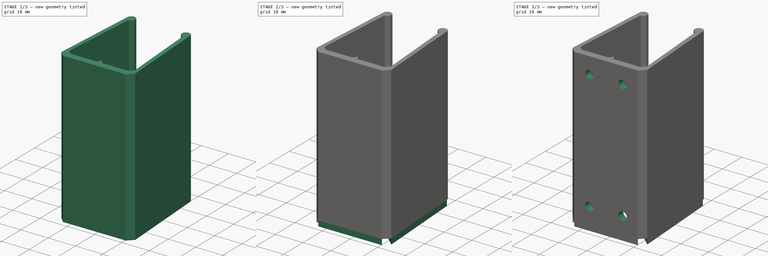
[diagram: build sequence overview — one tinted view per stage of 3, left to right]
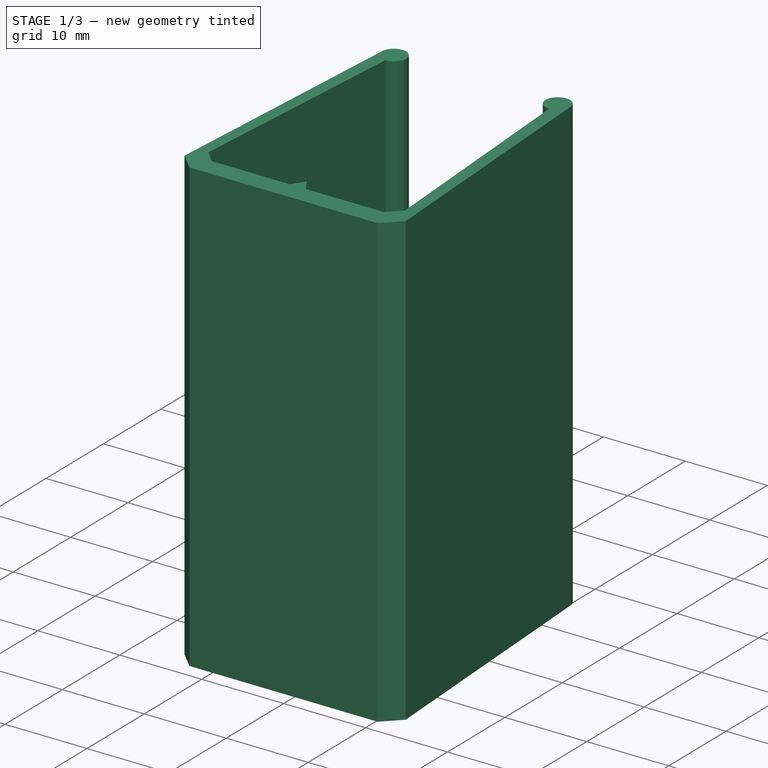
[diagram: stage 1 of 3 — iso view after this stage's code; geometry added in this stage tinted green]
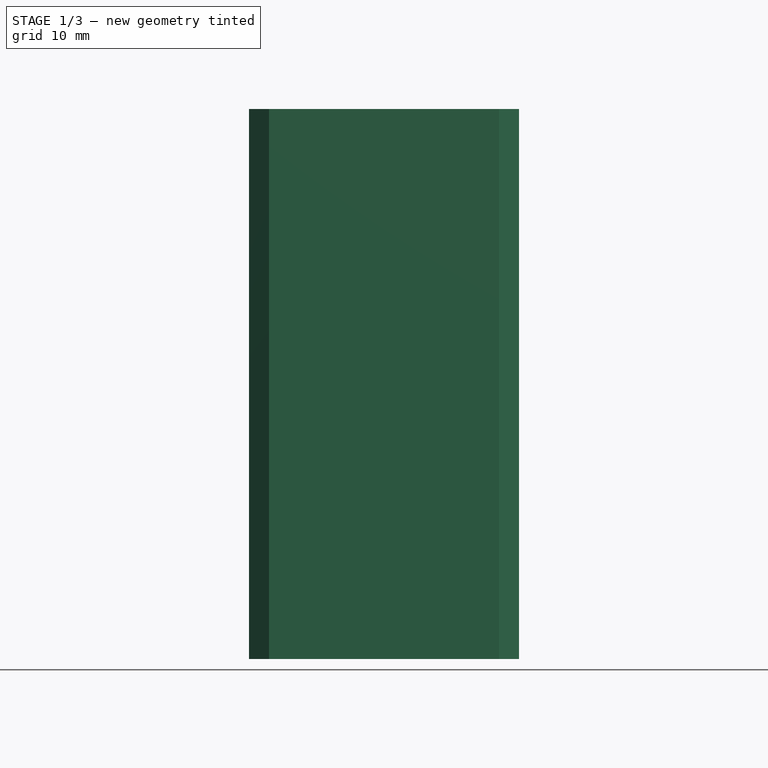
[diagram: stage 1 of 3 — front view after this stage's code; geometry added in this stage tinted green]
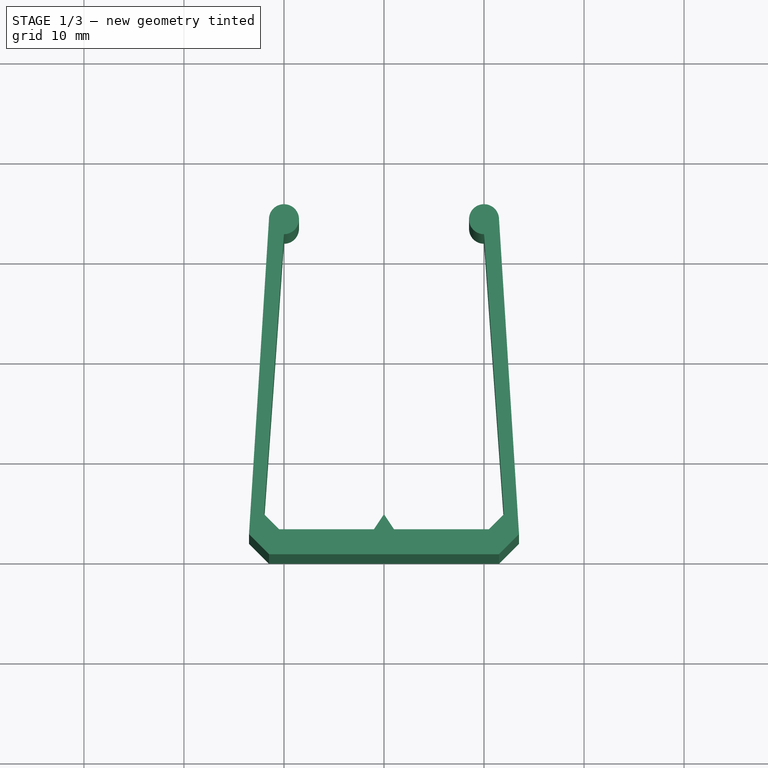
[diagram: stage 1 of 3 — top view after this stage's code; geometry added in this stage tinted green]
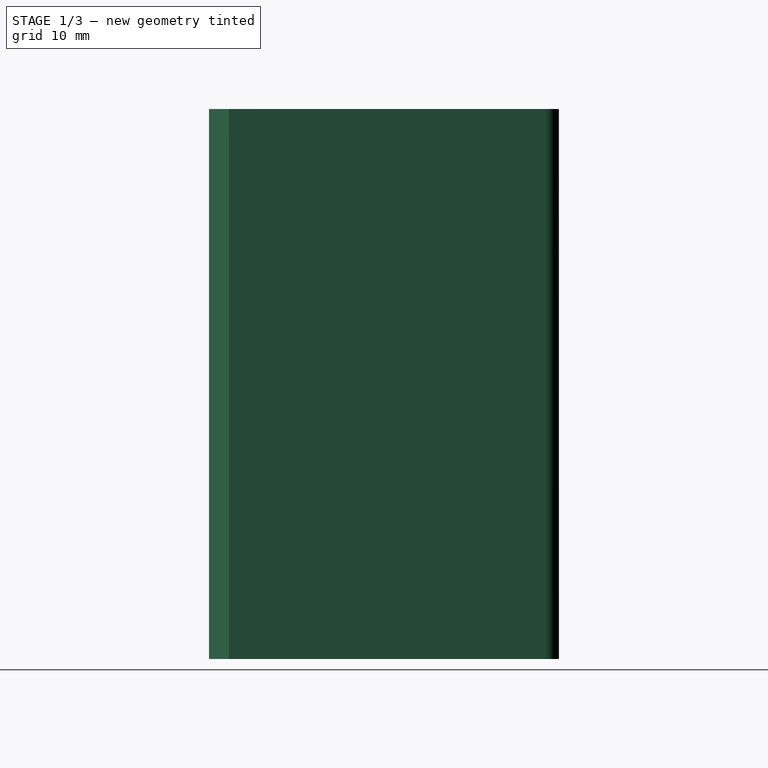
[diagram: stage 1 of 3 — right view after this stage's code; geometry added in this stage tinted green]
FCSTD DOCUMENT  (FreeCAD 0.18.4R)
Label: batterybracket
License: All rights reserved
LicenseURL: http://en.wikipedia.org/wiki/All_rights_reserved
objects: Sketcher::SketchObject×3, PartDesign::Mirrored×3, PartDesign::Pad×2, PartDesign::Pocket×1, PartDesign::Body×1
note: 13 computed .brp shape members not serialized (recipe doc carries the construction recipe); baked Part::Feature solids carry a one-line shape summary decoded from their .brp

FEATURE [Sketcher::SketchObject] Sketch
  MapMode = 5
  Support = -> [XY_Plane]
  sketch-geometry (9):
    g0: LineSegment StartX=11.5 StartY=0 StartZ=0 EndX=13.5 EndY=2 EndZ=0
    g1: LineSegment StartX=13.5 StartY=2 StartZ=0 EndX=11.5 EndY=33.5 EndZ=0
    g2: LineSegment StartX=12 StartY=4 StartZ=0 EndX=10.5 EndY=2.5 EndZ=0
    g3: LineSegment StartX=0 StartY=4 StartZ=0 EndX=0 EndY=0 EndZ=0
    g4: LineSegment StartX=0 StartY=0 StartZ=0 EndX=11.5 EndY=0 EndZ=0
    g5: LineSegment StartX=0 StartY=4 StartZ=0 EndX=1 EndY=2.5 EndZ=0
    g6: LineSegment StartX=1 StartY=2.5 StartZ=0 EndX=10.5 EndY=2.5 EndZ=0
    g7: ArcOfCircle CenterX=10 CenterY=33.5 CenterZ=0 NormalX=0 NormalY=0 NormalZ=1 AngleXU=0 Radius=1.5 StartAngle=1.3e-15 EndAngle=4.71239
    g8: LineSegment StartX=10 StartY=32 StartZ=0 EndX=12 EndY=4 EndZ=0
  constraints (27):
    c: Coincident(g0,g1)
    c: PointOnObject(g3,g-2)
    c: Coincident(g3,g-1)
    c: Coincident(g4,g3)
    c: Coincident(g4,g0)
    c: Horizontal(g4)
    c: DistanceY(g3,g3) = 4
    c: Coincident(g3,g5)
    c: Coincident(g5,g6)
    c: Horizontal(g6)
    c: Coincident(g2,g6)
    c: DistanceX(g3,g2) = 12
    c: DistanceX(g2,g0) = 1.5
    c: DistanceY(g3,g5) = 2.5
    c: DistanceY(g2,g7) = 31
    c: DistanceY(g2,g2) = 1.5
    c: DistanceY(g0,g0) = 2
    c: DistanceX(g2,g2) = 1.5
    c: DistanceX(g0,g0) = 2
    c: DistanceX(g1,g1) = 2
    c: Coincident(g7,g1)
    c: Coincident(g8,g7)
    c: Coincident(g8,g2)
    c: Radius(g7) = 1.5
    c: Vertical(g7,g7)
    c: DistanceX(g5,g5) = 1
    c: Horizontal(g1,g7)
FEATURE [PartDesign::Pad] Pad
  Length = 55
  Length2 = 100
  Profile = -> Sketch
  Refine = true
  Type = 0
FEATURE [Sketcher::SketchObject] Sketch001
  MapMode = 5
  Placement = pos=(0,0,0) rot=(1,0,0;1.5708rad)
  Support = -> [XZ_Plane]
  sketch-geometry (2):
    g0: Circle CenterX=6 CenterY=6 CenterZ=0 NormalX=0 NormalY=0 NormalZ=1 AngleXU=0 Radius=1.5
    g1: Circle CenterX=6 CenterY=49 CenterZ=0 NormalX=0 NormalY=0 NormalZ=1 AngleXU=0 Radius=1.5
  constraints (6):
    c: Radius(g1) = 1.5
    c: Equal(g1,g0)
    c: DistanceX(g-1,g0) = 6
    c: DistanceY(g-1,g0) = 6
    c: Vertical(g0,g1)
    c: DistanceY(g-1,g1) = 49
FEATURE [Sketcher::SketchObject] Sketch002
  ExternalGeometry = -> [Pad]
  MapMode = 5
  Support = -> [XY_Plane]
  sketch-geometry (8):
    g0: LineSegment StartX=11.5 StartY=33.5 StartZ=0 EndX=7.5 EndY=33.5 EndZ=0
    g1: LineSegment StartX=7.5 StartY=33.5 StartZ=0 EndX=7.5 EndY=7.5 EndZ=0
    g2: LineSegment StartX=7.5 StartY=7.5 StartZ=0 EndX=13.5 EndY=2 EndZ=0
    g3: LineSegment StartX=11.5 StartY=33.5 StartZ=0 EndX=13.5 EndY=2 EndZ=0
    g4: LineSegment StartX=11.5 StartY=0 StartZ=0 EndX=7 EndY=6 EndZ=0
    g5: LineSegment StartX=7 StartY=6 StartZ=0 EndX=0 EndY=6 EndZ=0
    g6: LineSegment StartX=0 StartY=6 StartZ=0 EndX=0 EndY=0 EndZ=0
    g7: LineSegment StartX=0 StartY=0 StartZ=0 EndX=11.5 EndY=0 EndZ=0
  constraints (21):
    c: Coincident(g-4,g0)
    c: Horizontal(g0)
    c: Coincident(g0,g1)
    c: Vertical(g1)
    c: Coincident(g1,g2)
    c: Coincident(g2,g-4)
    c: DistanceX(g0,g0) = 4
    c: DistanceY(g1,g1) = 26
    c: Coincident(g3,g0)
    c: Coincident(g3,g2)
    c: Coincident(g-3,g4)
    c: Coincident(g4,g5)
    c: PointOnObject(g5,g-2)
    c: Horizontal(g5)
    c: Coincident(g5,g6)
    c: Vertical(g6)
    c: Coincident(g6,g7)
    c: Coincident(g7,g4)
    c: Horizontal(g7)
    c: DistanceX(g5,g5) = 7
    c: DistanceY(g4,g4) = 6
FEATURE [PartDesign::Mirrored] Mirrored
  BaseFeature = -> Pad
  MirrorPlane = -> Sketch [V_Axis]
  Originals = -> [Pad]
  Refine = true
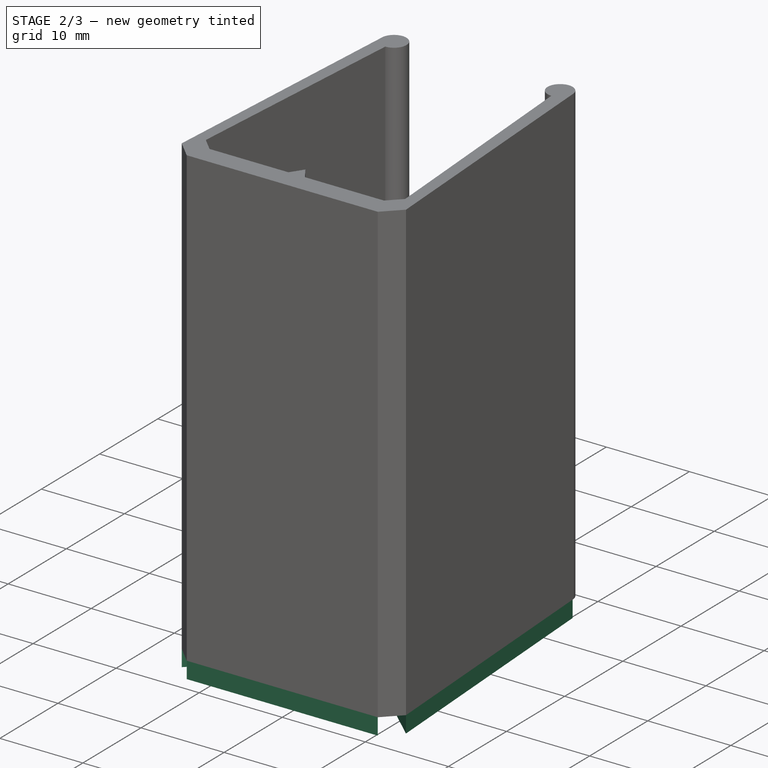
[diagram: stage 2 of 3 — iso view after this stage's code; geometry added in this stage tinted green]
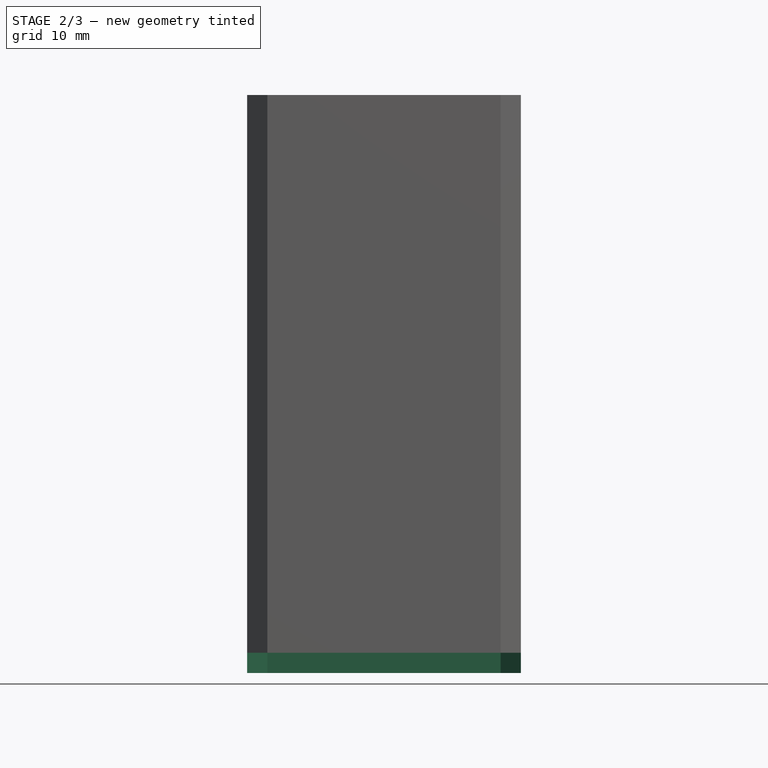
[diagram: stage 2 of 3 — front view after this stage's code; geometry added in this stage tinted green]
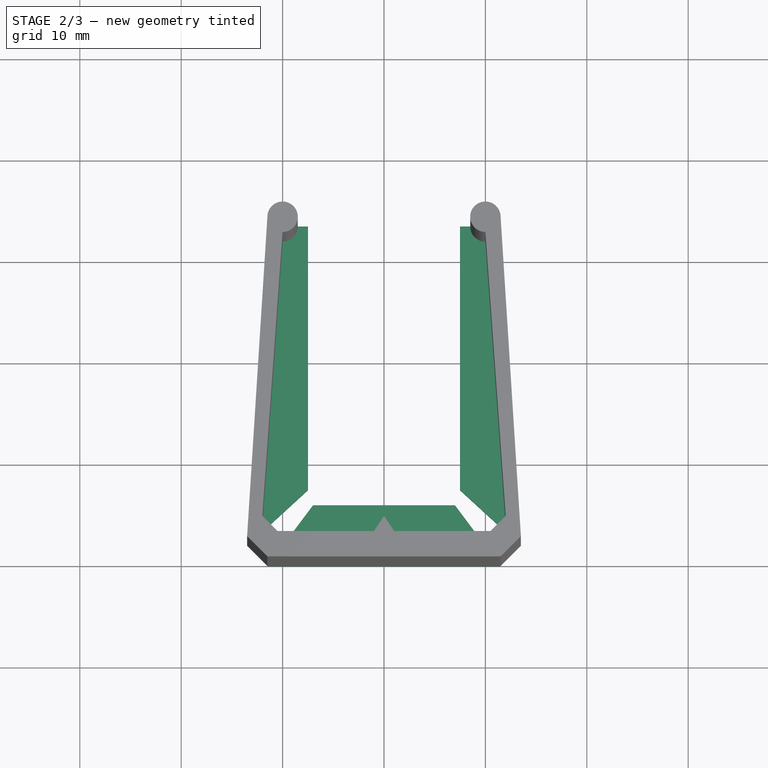
[diagram: stage 2 of 3 — top view after this stage's code; geometry added in this stage tinted green]
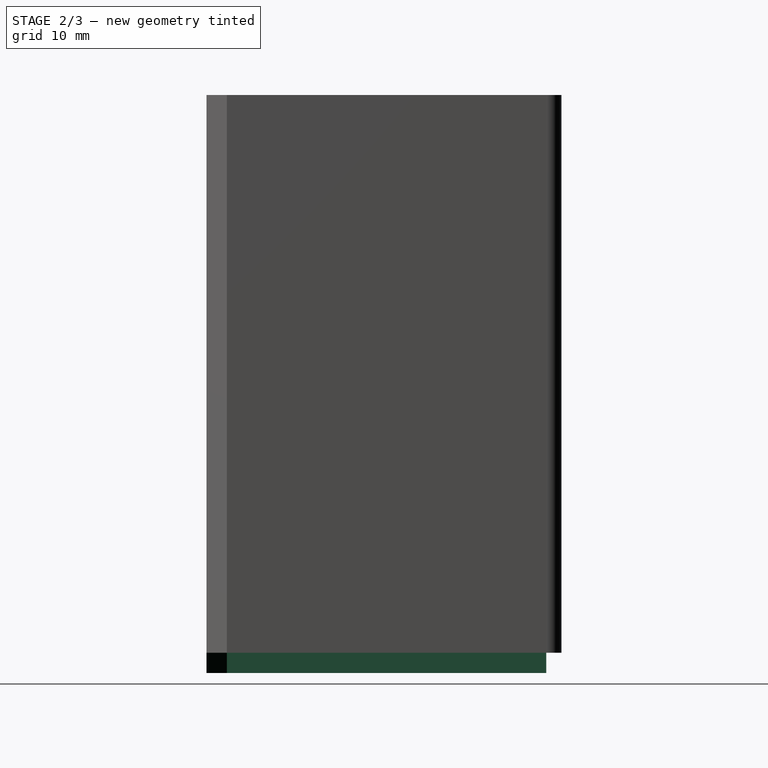
[diagram: stage 2 of 3 — right view after this stage's code; geometry added in this stage tinted green]
FEATURE [PartDesign::Pad] Pad001  label="Endpiece"
  BaseFeature = -> Mirrored
  Length = 2
  Length2 = 100
  Profile = -> Sketch002
  Refine = true
  Reversed = true
  Type = 0
FEATURE [PartDesign::Mirrored] Mirrored001
  BaseFeature = -> Pad001
  MirrorPlane = -> Sketch002 [V_Axis]
  Originals = -> [Pad001]
  Refine = true
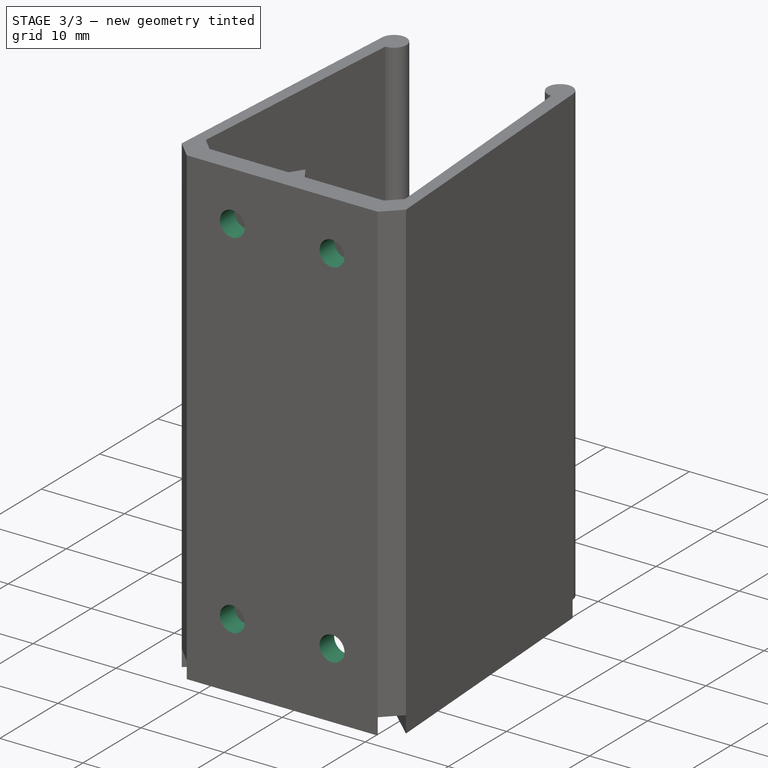
[diagram: stage 3 of 3 — iso view after this stage's code; geometry added in this stage tinted green]
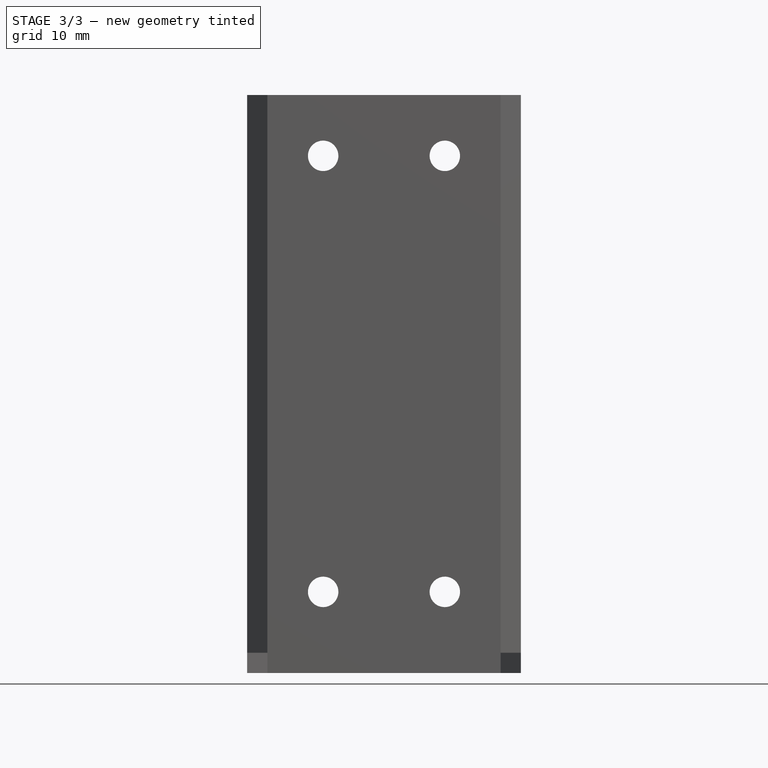
[diagram: stage 3 of 3 — front view after this stage's code; geometry added in this stage tinted green]
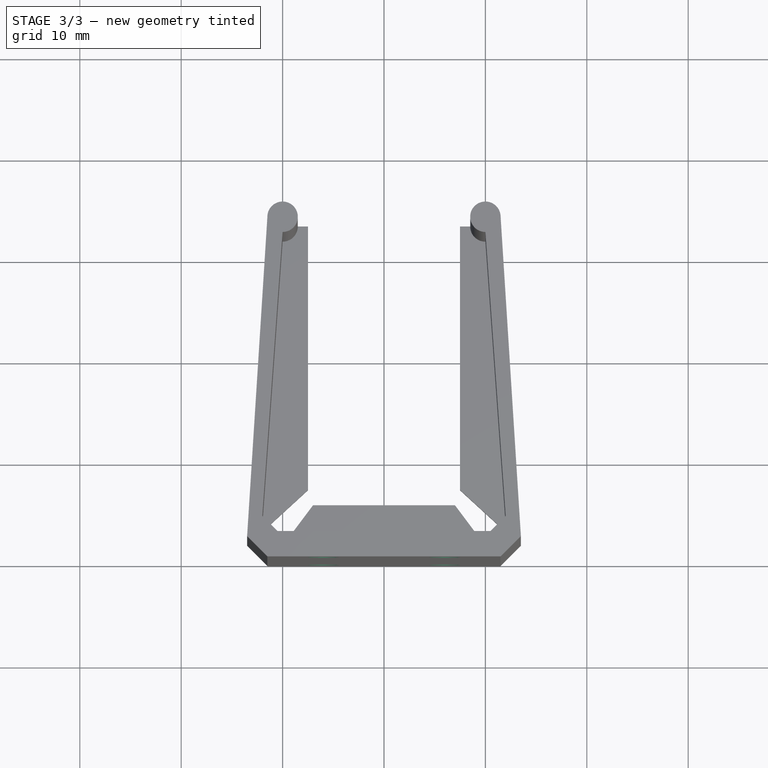
[diagram: stage 3 of 3 — top view after this stage's code; geometry added in this stage tinted green]
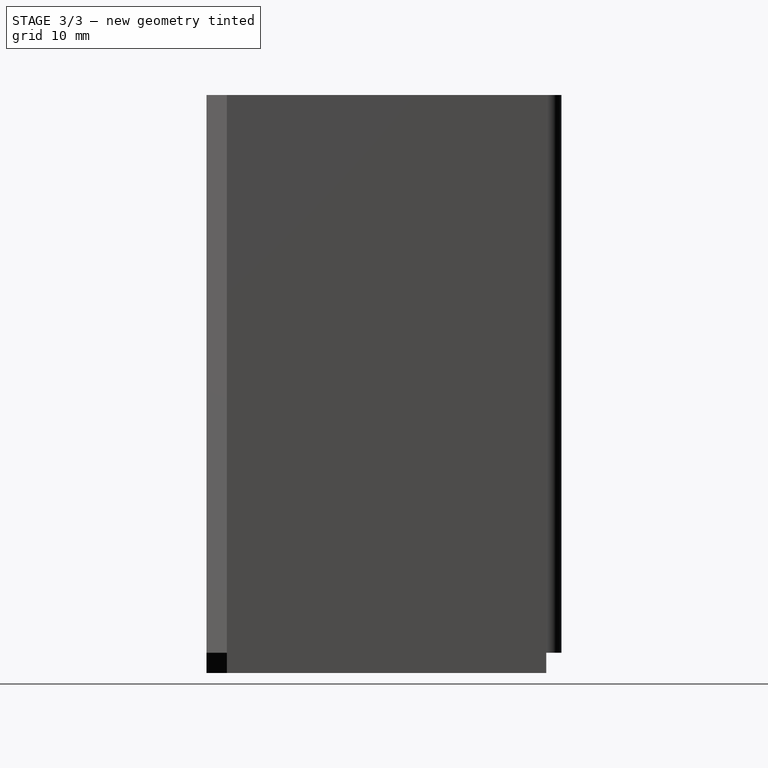
[diagram: stage 3 of 3 — right view after this stage's code; geometry added in this stage tinted green]
FEATURE [PartDesign::Pocket] Pocket
  BaseFeature = -> Mirrored001
  Length = 5
  Length2 = 100
  Profile = -> Sketch001
  Refine = true
  Type = 1
FEATURE [PartDesign::Mirrored] Mirrored002
  BaseFeature = -> Pocket
  MirrorPlane = -> Sketch001 [V_Axis]
  Originals = -> [Pocket]
  Refine = true
FEATURE [PartDesign::Body] Body
  Group = -> [Sketch,Pad,Sketch002,Mirrored,Pad001,Sketch001,Mirrored001,Pocket,Mirrored002]
  Origin = -> Origin
  Tip = -> Mirrored002
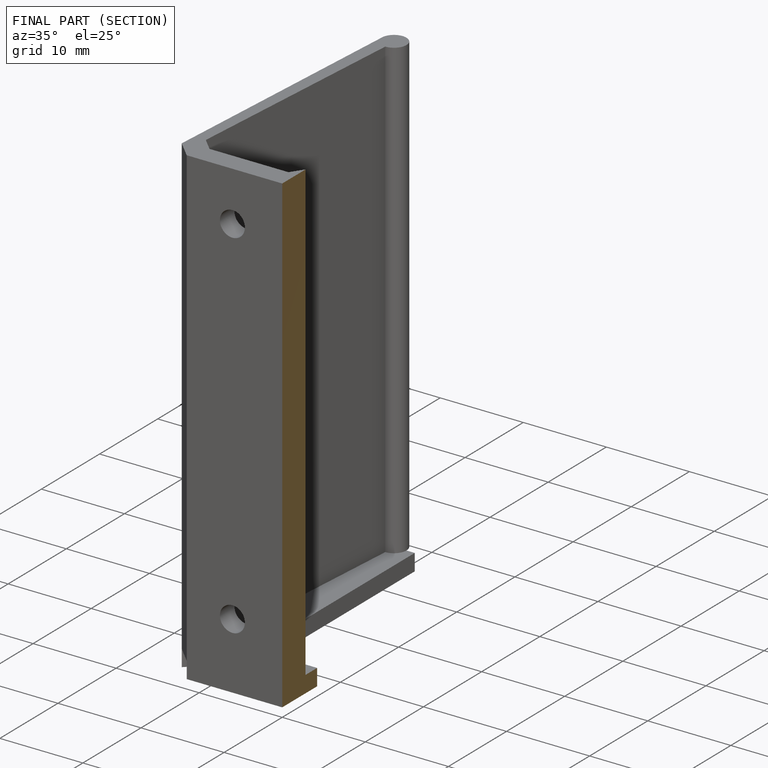
[diagram: finished part — half-section view (interior)]
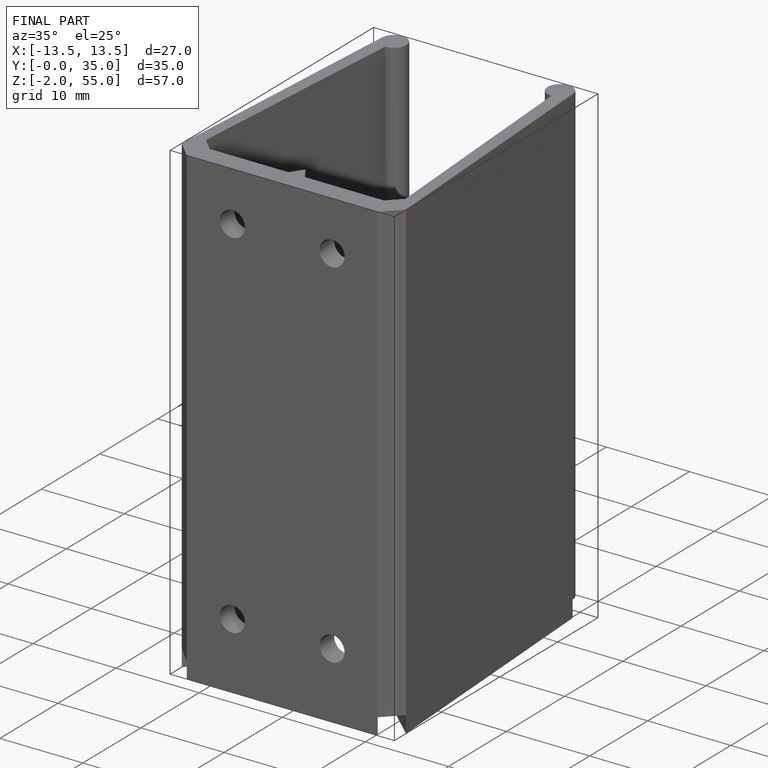
[diagram: finished part — iso view with bounding-box wireframe]
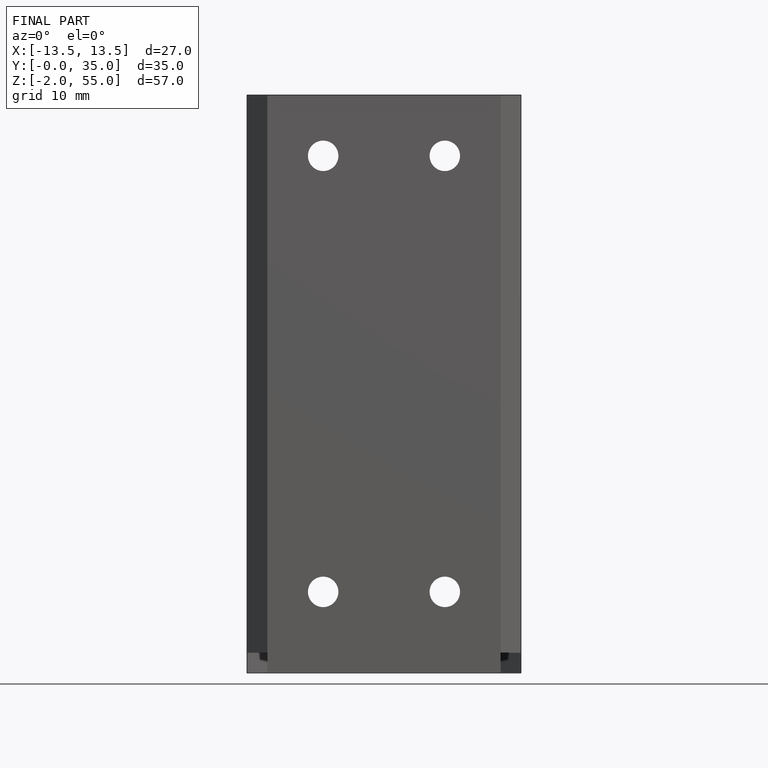
[diagram: finished part — front view with bounding-box wireframe]
